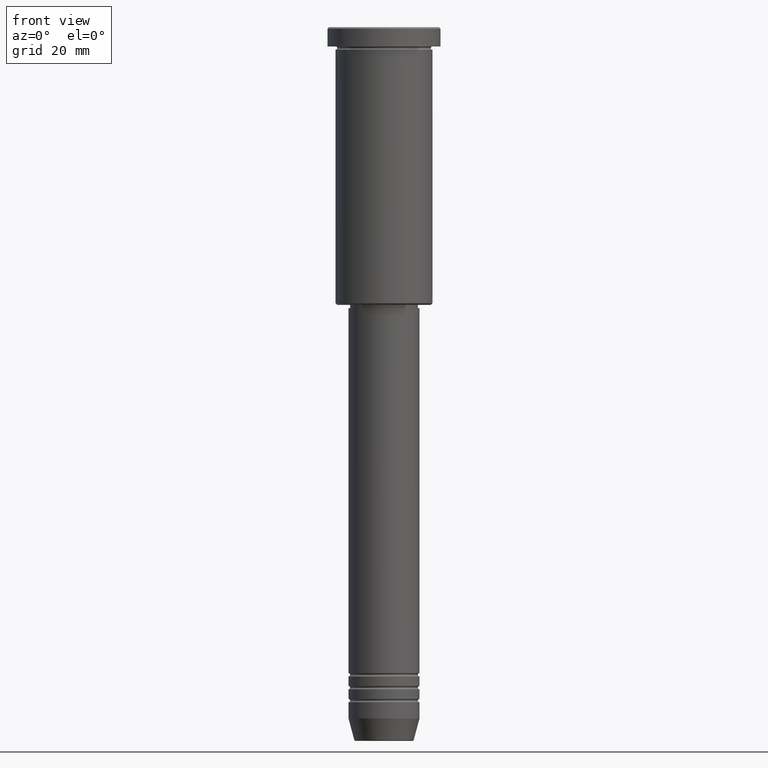
[diagram: clean part render]
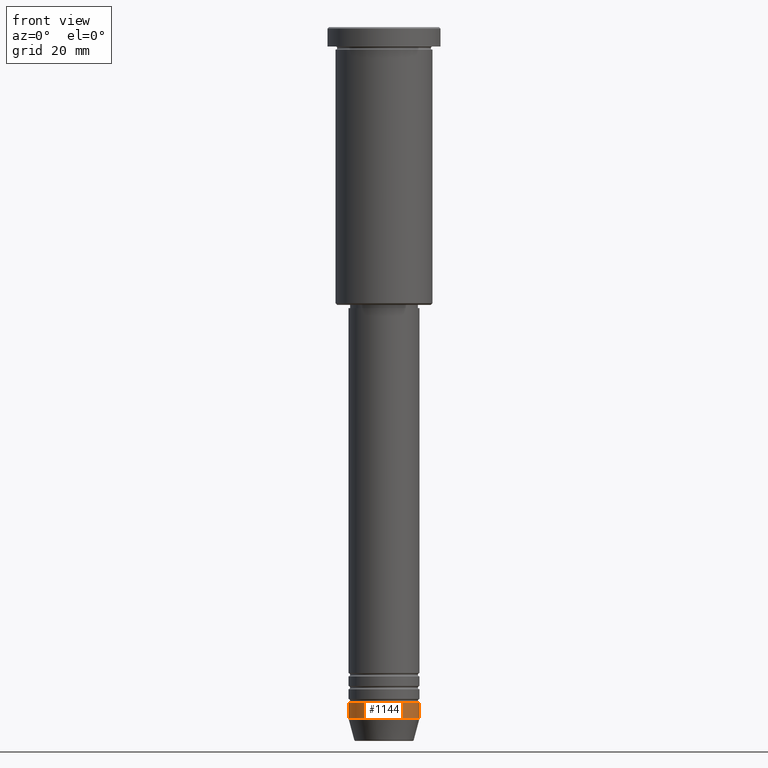
[diagram: same view with one face highlighted and labeled with its STEP entity id]
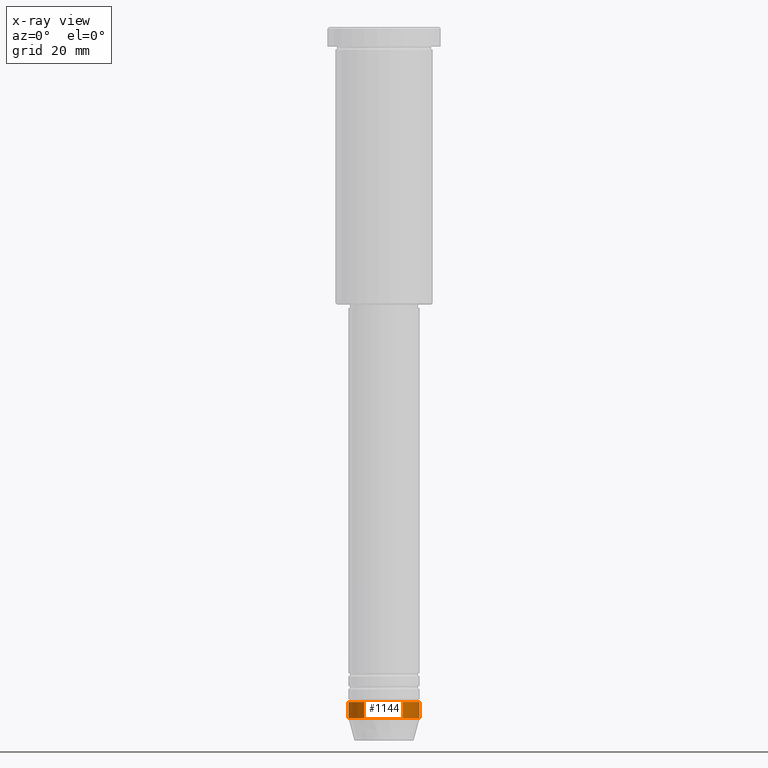
[diagram: x-ray of the same camera — body ghosted, the highlighted face saturated]
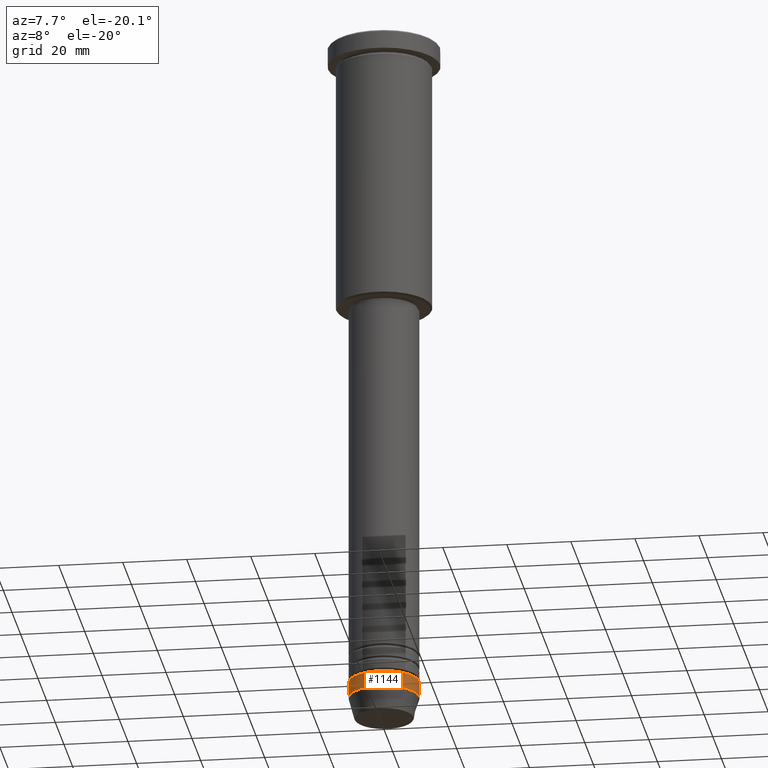
[diagram: same view with one face highlighted and labeled with its STEP entity id]
A machine part, front view. The second image highlights one B-rep face of the part: STEP entity #1144.
The next image is the same camera in x-ray: the body ghosted, the highlighted face saturated — about 0% of this face is hidden behind the body in this view.
A second angle (auxiliary view) of the same face is appended — the face is thin or edge-on in the first view.
In plain terms, the highlighted cylindrical surface (edge-blend (fillet) strip) has radius 11 mm, axis along (-0, -0, 1).
Its self-contained STEP definition (entity closure, byte-faithful):
#4 = VERTEX_POINT ( 'NONE', #147 ) ;
#33 = VECTOR ( 'NONE', #456, 1000.000000000000000 ) ;
#111 = DIRECTION ( 'NONE',  ( -0.000000000000000000, -0.000000000000000000, 1.000000000000000000 ) ) ;
#119 = CARTESIAN_POINT ( 'NONE',  ( 0.000000000000000000, 0.000000000000000000, -209.0000000000000568 ) ) ;
#147 = CARTESIAN_POINT ( 'NONE',  ( 11.00000000000000000, 0.000000000000000000, -209.0000000000000568 ) ) ;
#179 = CIRCLE ( 'NONE', #297, 11.00000000000000000 ) ;
#257 = DIRECTION ( 'NONE',  ( -0.000000000000000000, -0.000000000000000000, 1.000000000000000000 ) ) ;
#297 = AXIS2_PLACEMENT_3D ( 'NONE', #119, #111, #583 ) ;
#324 = ORIENTED_EDGE ( 'NONE', *, *, #912, .T. ) ;
#327 = DIRECTION ( 'NONE',  ( 1.000000000000000000, 0.000000000000000000, 0.000000000000000000 ) ) ;
#340 = AXIS2_PLACEMENT_3D ( 'NONE', #976, #502, #327 ) ;
#417 = CIRCLE ( 'NONE', #1142, 11.00000000000000000 ) ;
#456 = DIRECTION ( 'NONE',  ( -0.000000000000000000, -0.000000000000000000, 1.000000000000000000 ) ) ;
#467 = ORIENTED_EDGE ( 'NONE', *, *, #846, .T. ) ;
#502 = DIRECTION ( 'NONE',  ( -0.000000000000000000, -0.000000000000000000, 1.000000000000000000 ) ) ;
#509 = LINE ( 'NONE', #1063, #794 ) ;
#515 = ORIENTED_EDGE ( 'NONE', *, *, #1150, .F. ) ;
#533 = VERTEX_POINT ( 'NONE', #942 ) ;
#541 = CARTESIAN_POINT ( 'NONE',  ( 11.00000000000000000, 0.000000000000000000, 0.000000000000000000 ) ) ;
#583 = DIRECTION ( 'NONE',  ( 1.000000000000000000, 0.000000000000000000, 0.000000000000000000 ) ) ;
#615 = ORIENTED_EDGE ( 'NONE', *, *, #743, .F. ) ;
#638 = CARTESIAN_POINT ( 'NONE',  ( -11.00000000000000000, 1.347111479062088405E-15, -214.0000000000000284 ) ) ;
#662 = VERTEX_POINT ( 'NONE', #916 ) ;
#676 = VERTEX_POINT ( 'NONE', #638 ) ;
#683 = FACE_OUTER_BOUND ( 'NONE', #949, .T. ) ;
#743 = EDGE_CURVE ( 'NONE', #662, #4, #179, .T. ) ;
#794 = VECTOR ( 'NONE', #1146, 1000.000000000000000 ) ;
#810 = CARTESIAN_POINT ( 'NONE',  ( 0.000000000000000000, 0.000000000000000000, -214.0000000000000284 ) ) ;
#846 = EDGE_CURVE ( 'NONE', #676, #533, #417, .T. ) ;
#880 = CYLINDRICAL_SURFACE ( 'NONE', #340, 11.00000000000000000 ) ;
#912 = EDGE_CURVE ( 'NONE', #533, #4, #1102, .T. ) ;
#916 = CARTESIAN_POINT ( 'NONE',  ( -11.00000000000000000, 1.347111479062088405E-15, -209.0000000000000568 ) ) ;
#942 = CARTESIAN_POINT ( 'NONE',  ( 11.00000000000000000, 0.000000000000000000, -214.0000000000000284 ) ) ;
#949 = EDGE_LOOP ( 'NONE', ( #515, #467, #324, #615 ) ) ;
#976 = CARTESIAN_POINT ( 'NONE',  ( 0.000000000000000000, 0.000000000000000000, 0.000000000000000000 ) ) ;
#1063 = CARTESIAN_POINT ( 'NONE',  ( -11.00000000000000000, 1.347111479062088405E-15, 0.000000000000000000 ) ) ;
#1102 = LINE ( 'NONE', #541, #33 ) ;
#1142 = AXIS2_PLACEMENT_3D ( 'NONE', #810, #257, #1175 ) ;
#1144 = ADVANCED_FACE ( 'NONE', ( #683 ), #880, .T. ) ;
#1146 = DIRECTION ( 'NONE',  ( -0.000000000000000000, -0.000000000000000000, 1.000000000000000000 ) ) ;
#1150 = EDGE_CURVE ( 'NONE', #676, #662, #509, .T. ) ;
#1175 = DIRECTION ( 'NONE',  ( 1.000000000000000000, 0.000000000000000000, 0.000000000000000000 ) ) ;